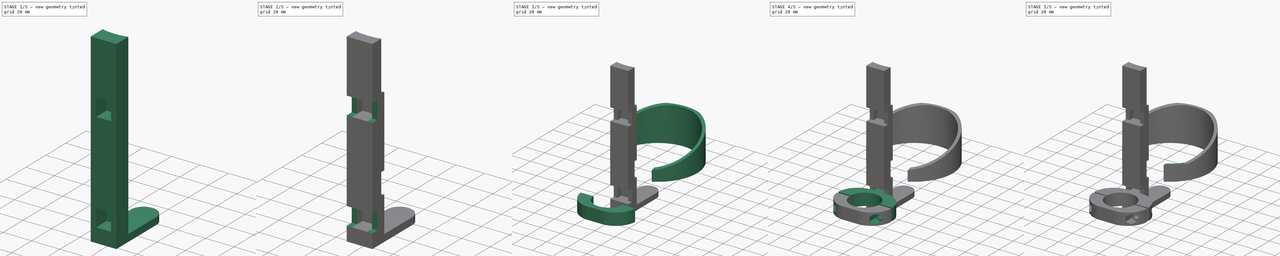
[diagram: build sequence overview — one tinted view per stage of 5, left to right]
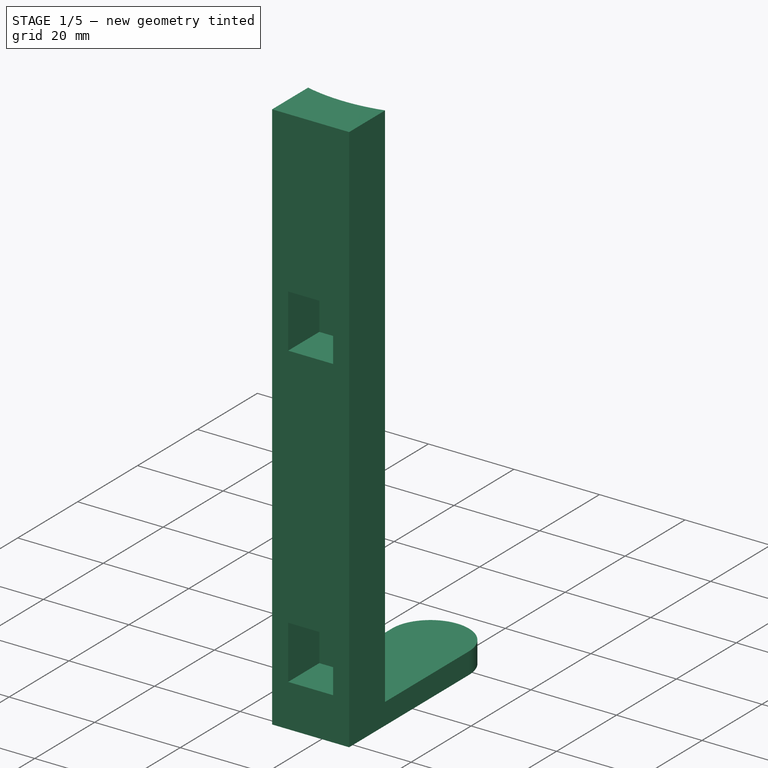
[diagram: stage 1 of 5 — iso view after this stage's code; geometry added in this stage tinted green]
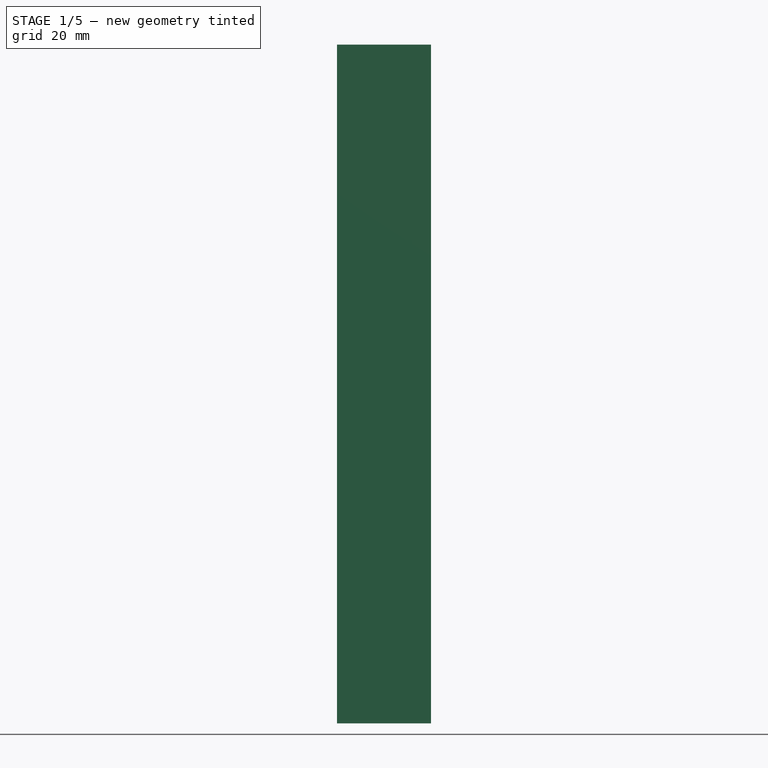
[diagram: stage 1 of 5 — front view after this stage's code; geometry added in this stage tinted green]
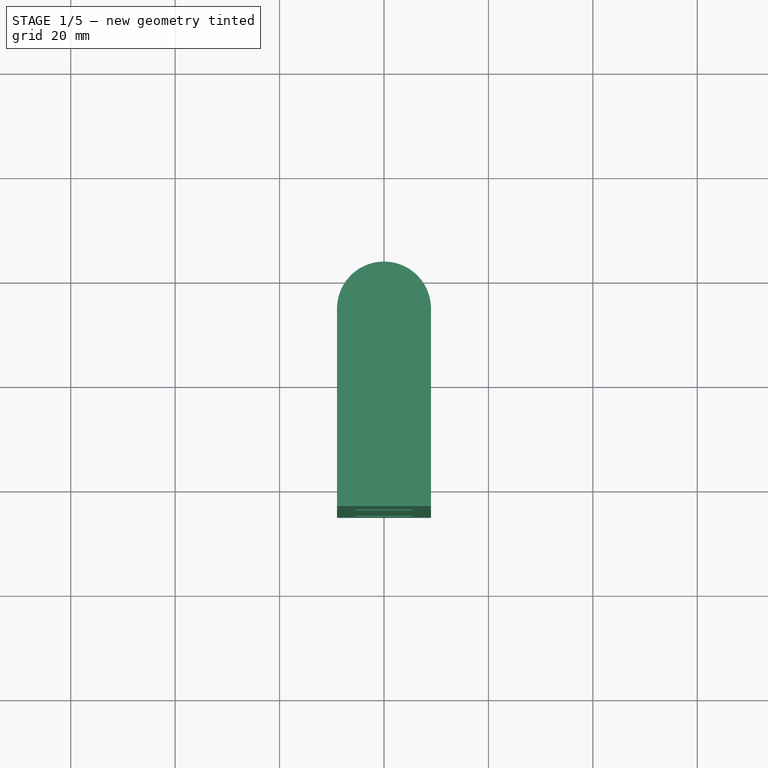
[diagram: stage 1 of 5 — top view after this stage's code; geometry added in this stage tinted green]
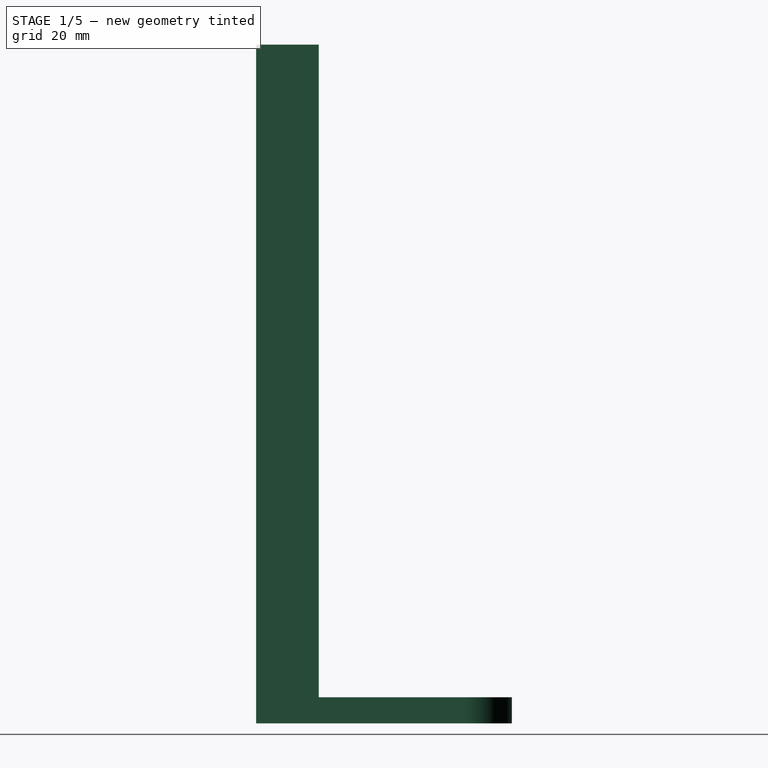
[diagram: stage 1 of 5 — right view after this stage's code; geometry added in this stage tinted green]
FCSTD DOCUMENT  (FreeCAD 0.21Rpre_29277.fc34 (Git))
Label: masodik-kulacstarto
License: All rights reserved
LicenseURL: http://en.wikipedia.org/wiki/All_rights_reserved
objects: Sketcher::SketchObject×15, PartDesign::Pocket×9, PartDesign::Pad×6, PartDesign::Body×5
note: 50 computed .brp shape members not serialized (recipe doc carries the construction recipe); baked Part::Feature solids carry a one-line shape summary decoded from their .brp

FEATURE [Sketcher::SketchObject] Sketch002
  FullyConstrained = true
  MapMode = 5
  Support = -> [XY_Plane002]
  sketch-geometry (4):
    g0: LineSegment StartX=-9 StartY=15 StartZ=0 EndX=9 EndY=15 EndZ=0
    g1: LineSegment StartX=9 StartY=15 StartZ=0 EndX=9 EndY=27 EndZ=0
    g2: LineSegment StartX=-9 StartY=27 StartZ=0 EndX=-9 EndY=15 EndZ=0
    g3: ArcOfCircle CenterX=-9.1e-15 CenterY=61.8569 CenterZ=0 NormalX=0 NormalY=0 NormalZ=1 AngleXU=0 Radius=36 StartAngle=4.45971 EndAngle=4.96507
  constraints (13):
    c: Coincident(g0,g1)
    c: Coincident(g2,g0)
    c: Horizontal(g0)
    c: Vertical(g1)
    c: Vertical(g2)
    c: DistanceX(g0,g0) = 18
    c: DistanceX(g0) = 9
    c: DistanceY(g0) = 15
    c: DistanceY(g1,g1) = 12
    c: Coincident(g3,g1)
    c: Radius(g3) = 36
    c: DistanceY(g2,g2) = 12
    c: Coincident(g2,g3)
FEATURE [PartDesign::Pad] Pad002  label="gerinc"
  Direction = (0,0,1)
  Length = 125
  Length2 = 10
  Profile = -> Sketch002
  ReferenceAxis = -> Sketch002 [N_Axis]
  Type = 0
FEATURE [Sketcher::SketchObject] Sketch003
  FullyConstrained = true
  MapMode = 5
  Support = -> [XY_Plane002]
  sketch-geometry (4):
    g0: LineSegment StartX=-9 StartY=15 StartZ=0 EndX=9 EndY=15 EndZ=0
    g1: LineSegment StartX=9 StartY=15 StartZ=0 EndX=9 EndY=55 EndZ=0
    g2: LineSegment StartX=-9 StartY=55 StartZ=0 EndX=-9 EndY=15 EndZ=0
    g3: ArcOfCircle CenterX=0 CenterY=55 CenterZ=0 NormalX=0 NormalY=0 NormalZ=1 AngleXU=0 Radius=9 StartAngle=0 EndAngle=3.14159
  constraints (13):
    c: Coincident(g0,g1)
    c: Coincident(g2,g0)
    c: Horizontal(g0)
    c: Vertical(g1)
    c: Vertical(g2)
    c: DistanceX(g0,g0) = 18
    c: DistanceX(g0) = 9
    c: DistanceY(g0) = 15
    c: DistanceY(g1,g1) = 40
    c: DistanceY(g2,g2) = 40
    c: DistanceY(g3) = 55
    c: Coincident(g3,g2)
    c: Coincident(g3,g1)
FEATURE [PartDesign::Pad] Pad003  label="also-tarto"
  BaseFeature = -> Pad002
  Direction = (0,0,1)
  Length = 5
  Length2 = 10
  Profile = -> Sketch003
  ReferenceAxis = -> Sketch003 [N_Axis]
  Reversed = true
  Type = 0
FEATURE [Sketcher::SketchObject] Sketch004
  AttachmentOffset = pos=(0,0,-15) rot=(0,0,1;0rad)
  FullyConstrained = true
  MapMode = 5
  Placement = pos=(0,15,3.3e-15) rot=(1,0,0;1.5708rad)
  Support = -> [XZ_Plane002]
  sketch-geometry (8):
    g0: LineSegment StartX=-5.25 StartY=5 StartZ=0 EndX=5.25 EndY=5 EndZ=0
    g1: LineSegment StartX=5.25 StartY=5 StartZ=0 EndX=5.25 EndY=17.5 EndZ=0
    g2: LineSegment StartX=5.25 StartY=17.5 StartZ=0 EndX=-5.25 EndY=17.5 EndZ=0
    g3: LineSegment StartX=-5.25 StartY=17.5 StartZ=0 EndX=-5.25 EndY=5 EndZ=0
    g4: LineSegment StartX=-5.25 StartY=75 StartZ=0 EndX=5.25 EndY=75 EndZ=0
    g5: LineSegment StartX=5.25 StartY=75 StartZ=0 EndX=5.25 EndY=87.5 EndZ=0
    g6: LineSegment StartX=5.25 StartY=87.5 StartZ=0 EndX=-5.25 EndY=87.5 EndZ=0
    g7: LineSegment StartX=-5.25 StartY=87.5 StartZ=0 EndX=-5.25 EndY=75 EndZ=0
  constraints (24):
    c: Coincident(g0,g1)
    c: Coincident(g1,g2)
    c: Coincident(g2,g3)
    c: Coincident(g3,g0)
    c: Horizontal(g0)
    c: Horizontal(g2)
    c: Vertical(g1)
    c: Vertical(g3)
    c: Coincident(g4,g5)
    c: Coincident(g5,g6)
    c: Coincident(g6,g7)
    c: Coincident(g7,g4)
    c: Horizontal(g4)
    c: Horizontal(g6)
    c: Vertical(g5)
    c: Vertical(g7)
    c: DistanceX(g6,g6) = 10.5
    c: DistanceX(g0,g0) = 10.5
    c: DistanceY(g1,g1) = 12.5
    c: DistanceY(g5,g5) = 12.5
    c: DistanceX(g0) = 5.25
    c: DistanceY(g0) = 5
    c: DistanceX(g4) = 5.25
    c: DistanceY(g4) = 75
FEATURE [PartDesign::Pocket] Pocket  label="rogz-csapok-helye"
  BaseFeature = -> Pad003
  Direction = (0,1,2e-16)
  Length = 10.4
  Length2 = 5
  Profile = -> Sketch004
  ReferenceAxis = -> Sketch004 [N_Axis]
  Type = 0
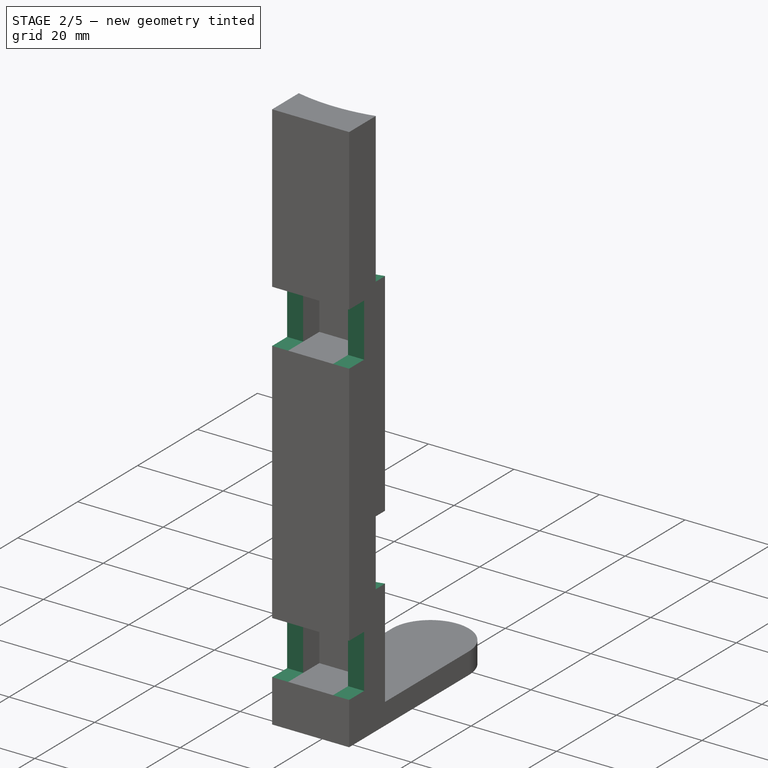
[diagram: stage 2 of 5 — iso view after this stage's code; geometry added in this stage tinted green]
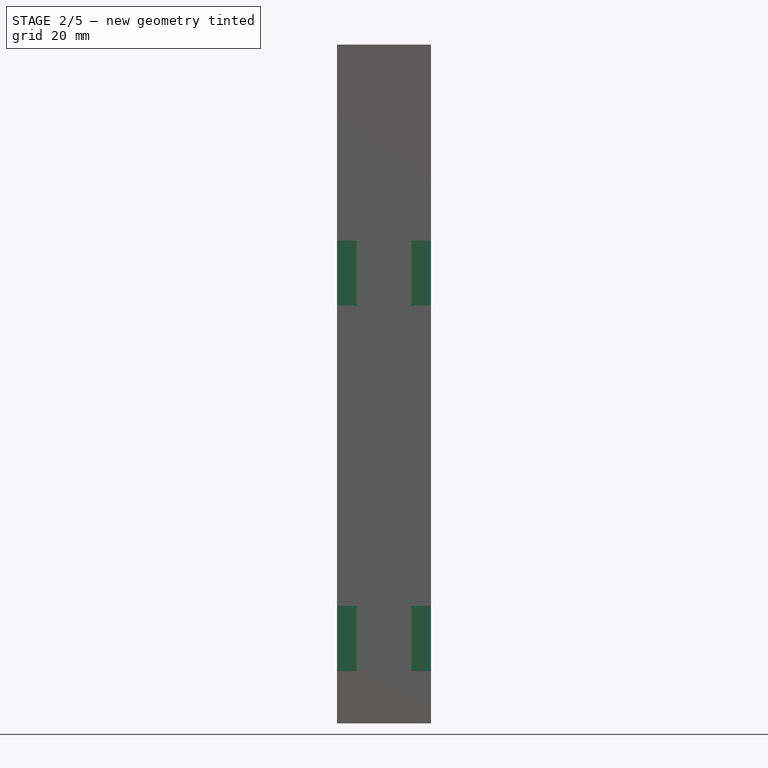
[diagram: stage 2 of 5 — front view after this stage's code; geometry added in this stage tinted green]
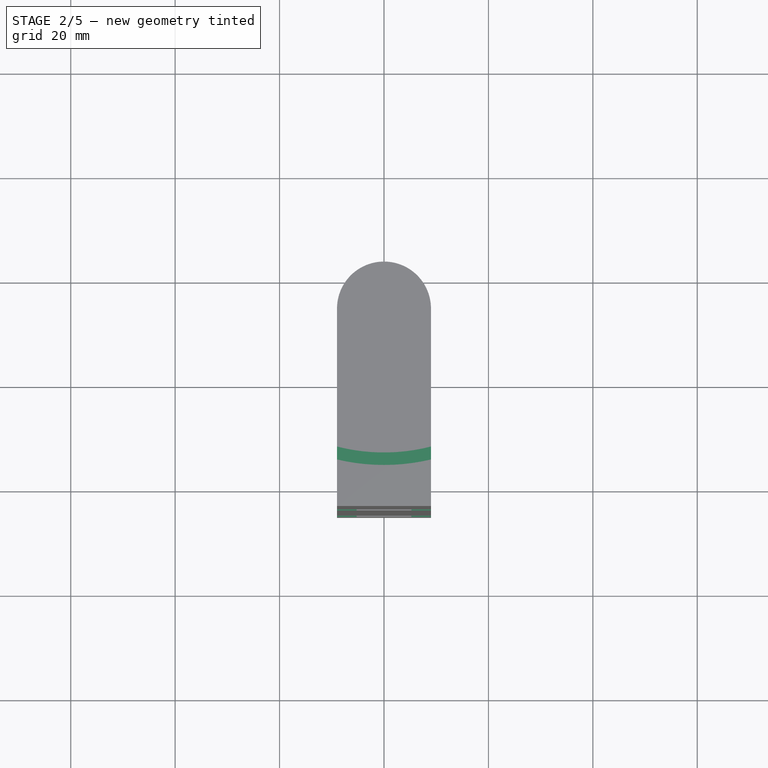
[diagram: stage 2 of 5 — top view after this stage's code; geometry added in this stage tinted green]
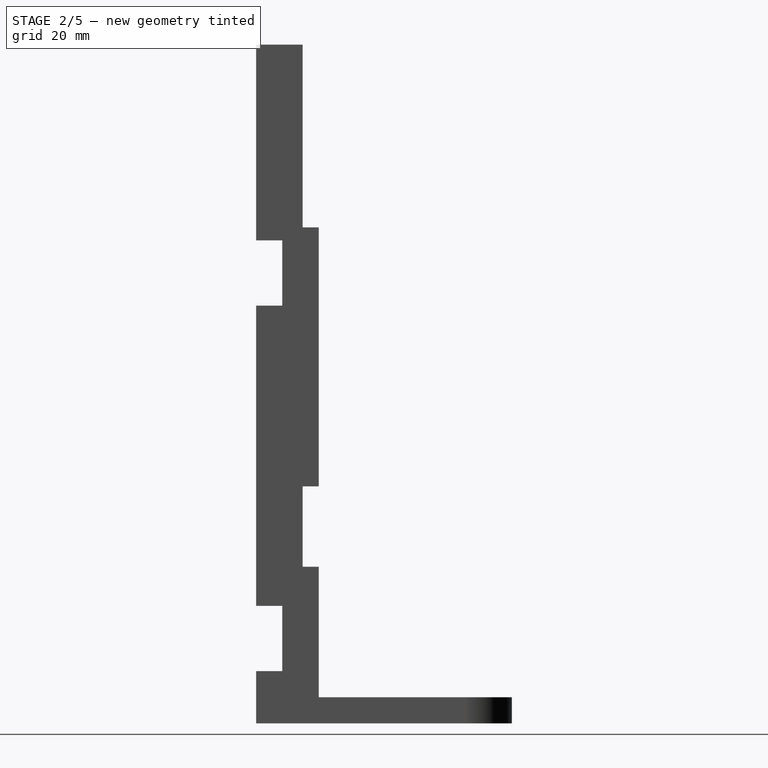
[diagram: stage 2 of 5 — right view after this stage's code; geometry added in this stage tinted green]
FEATURE [PartDesign::Body] Body003  label="also-tarto-kar"
  Group = -> [Sketch007,Pad004]
  Origin = -> Origin003
  Tip = -> Pad004
FEATURE [Sketcher::SketchObject] Sketch008
  AttachmentOffset = pos=(0,0,25) rot=(0,0,1;0rad)
  FullyConstrained = true
  MapMode = 5
  Placement = pos=(0,0,25) rot=(0,0,1;0rad)
  Support = -> [XY_Plane002]
  sketch-geometry (4):
    g0: ArcOfCircle CenterX=0 CenterY=61.8569 CenterZ=0 NormalX=0 NormalY=0 NormalZ=1 AngleXU=0 Radius=36 StartAngle=4.45971 EndAngle=4.96507
    g1: ArcOfCircle CenterX=0 CenterY=61.8569 CenterZ=0 NormalX=0 NormalY=0 NormalZ=1 AngleXU=0 Radius=39 StartAngle=4.47952 EndAngle=4.94526
    g2: LineSegment StartX=-9 StartY=27 StartZ=0 EndX=-9 EndY=23.9095 EndZ=0
    g3: LineSegment StartX=9 StartY=27 StartZ=0 EndX=9 EndY=23.9095 EndZ=0
  constraints (13):
    c: PointOnObject(g0,g-2)
    c: Radius(g0) = 36
    c: Coincident(g1,g0)
    c: Radius(g1) = 39
    c: Vertical(g3)
    c: DistanceX(g3) = 9
    c: DistanceY(g3) = 27
    c: Vertical(g2)
    c: DistanceX(g2) = -9
    c: Coincident(g0,g3)
    c: Coincident(g0,g2)
    c: Coincident(g1,g3)
    c: Coincident(g1,g2)
FEATURE [PartDesign::Pocket] Pocket001  label="also-kar-kivagas"
  BaseFeature = -> Pocket
  Direction = (0,0,-1)
  Length = 15.4
  Length2 = 5
  Profile = -> Sketch008
  ReferenceAxis = -> Sketch008 [N_Axis]
  Reversed = true
  Type = 0
FEATURE [Sketcher::SketchObject] Sketch009
  AttachmentOffset = pos=(0,0,90) rot=(0,0,1;0rad)
  FullyConstrained = true
  MapMode = 5
  Placement = pos=(0,0,90) rot=(0,0,1;0rad)
  Support = -> [XY_Plane002]
  sketch-geometry (4):
    g0: ArcOfCircle CenterX=0 CenterY=61.8569 CenterZ=0 NormalX=0 NormalY=0 NormalZ=1 AngleXU=0 Radius=36 StartAngle=4.45971 EndAngle=4.96507
    g1: ArcOfCircle CenterX=0 CenterY=61.8569 CenterZ=0 NormalX=0 NormalY=0 NormalZ=1 AngleXU=0 Radius=39 StartAngle=4.47952 EndAngle=4.94526
    g2: LineSegment StartX=-9 StartY=27 StartZ=0 EndX=-9 EndY=23.9095 EndZ=0
    g3: LineSegment StartX=9 StartY=27 StartZ=0 EndX=9 EndY=23.9095 EndZ=0
  constraints (13):
    c: PointOnObject(g0,g-2)
    c: Radius(g0) = 36
    c: Coincident(g1,g0)
    c: Radius(g1) = 39
    c: Vertical(g3)
    c: DistanceX(g3) = 9
    c: DistanceY(g3) = 27
    c: Vertical(g2)
    c: DistanceX(g2) = -9
    c: Coincident(g0,g3)
    c: Coincident(g0,g2)
    c: Coincident(g1,g3)
    c: Coincident(g1,g2)
FEATURE [PartDesign::Pocket] Pocket002  label="felso-kar-kivagas"
  BaseFeature = -> Pocket001
  Direction = (0,0,-1)
  Length = 35
  Length2 = 5
  Profile = -> Sketch009
  ReferenceAxis = -> Sketch009 [N_Axis]
  Reversed = true
  Type = 0
FEATURE [PartDesign::Body] Body004  label="felso-tarto-kar"
  Group = -> [Sketch014,Pad005,Sketch015,Pocket007]
  Origin = -> Origin004
  Placement = pos=(0,0,50) rot=(0,0,1;0rad)
  Tip = -> Pocket007
FEATURE [Sketcher::SketchObject] Sketch016
  AttachmentOffset = pos=(0,0,-15) rot=(0,0,1;0rad)
  FullyConstrained = true
  MapMode = 5
  Placement = pos=(0,15,3.3e-15) rot=(1,0,0;1.5708rad)
  Support = -> [XZ_Plane002]
  sketch-geometry (8):
    g0: LineSegment StartX=-9 StartY=17.5 StartZ=0 EndX=9 EndY=17.5 EndZ=0
    g1: LineSegment StartX=9 StartY=17.5 StartZ=0 EndX=9 EndY=5 EndZ=0
    g2: LineSegment StartX=9 StartY=5 StartZ=0 EndX=-9 EndY=5 EndZ=0
    g3: LineSegment StartX=-9 StartY=5 StartZ=0 EndX=-9 EndY=17.5 EndZ=0
    g4: LineSegment StartX=-9 StartY=87.5 StartZ=0 EndX=9 EndY=87.5 EndZ=0
    g5: LineSegment StartX=9 StartY=87.5 StartZ=0 EndX=9 EndY=75 EndZ=0
    g6: LineSegment StartX=9 StartY=75 StartZ=0 EndX=-9 EndY=75 EndZ=0
    g7: LineSegment StartX=-9 StartY=75 StartZ=0 EndX=-9 EndY=87.5 EndZ=0
  constraints (24):
    c: Coincident(g0,g1)
    c: Coincident(g1,g2)
    c: Coincident(g2,g3)
    c: Coincident(g3,g0)
    c: Horizontal(g0)
    c: Horizontal(g2)
    c: Vertical(g1)
    c: Vertical(g3)
    c: Coincident(g4,g5)
    c: Coincident(g5,g6)
    c: Coincident(g6,g7)
    c: Coincident(g7,g4)
    c: Horizontal(g4)
    c: Horizontal(g6)
    c: Vertical(g5)
    c: Vertical(g7)
    c: DistanceX(g1) = 9
    c: DistanceY(g1) = 5
    c: DistanceX(g5) = 9
    c: DistanceY(g5) = 75
    c: DistanceX(g4,g4) = 18
    c: DistanceX(g0,g0) = 18
    c: DistanceY(g5,g5) = 12.5
    c: DistanceY(g1,g1) = 12.5
FEATURE [PartDesign::Pocket] Pocket008  label="bilincs-kivagas"
  BaseFeature = -> Pocket002
  Direction = (0,1,2e-16)
  Length = 5
  Length2 = 5
  Profile = -> Sketch016
  ReferenceAxis = -> Sketch016 [N_Axis]
  Type = 0
FEATURE [PartDesign::Body] Body002  label="tarto-gerinc"
  Group = -> [Sketch002,Pad002,Sketch003,Pad003,Sketch004,Pocket,Sketch008,Pocket001,Sketch009,Pocket002,Sketch016,Pocket008]
  Origin = -> Origin002
  Tip = -> Pocket008
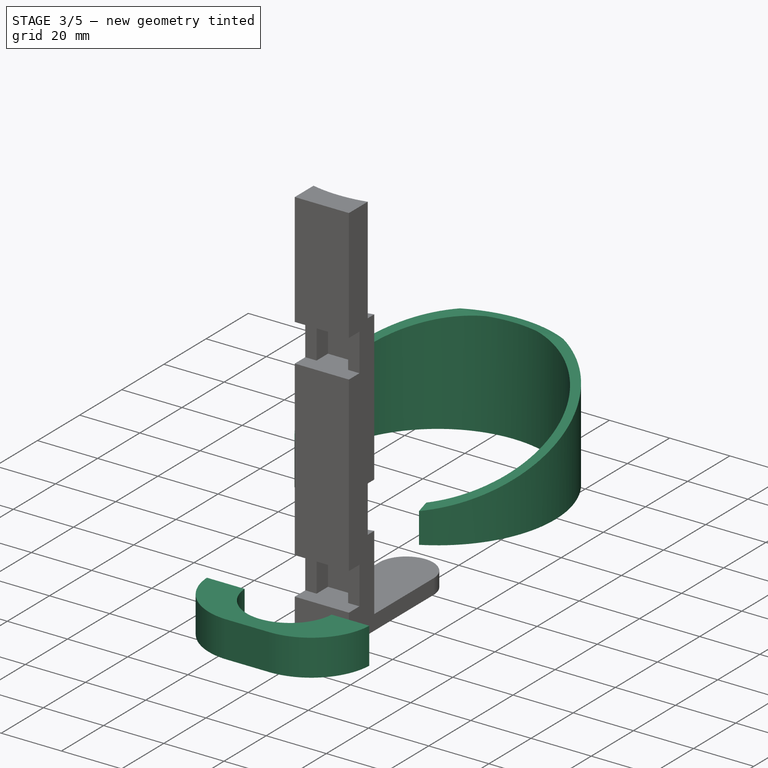
[diagram: stage 3 of 5 — iso view after this stage's code; geometry added in this stage tinted green]
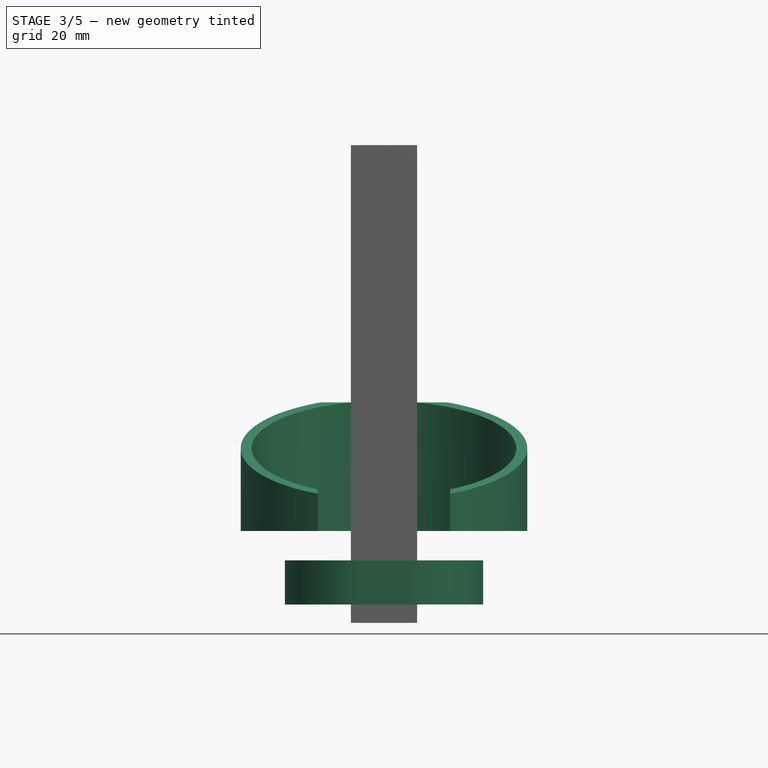
[diagram: stage 3 of 5 — front view after this stage's code; geometry added in this stage tinted green]
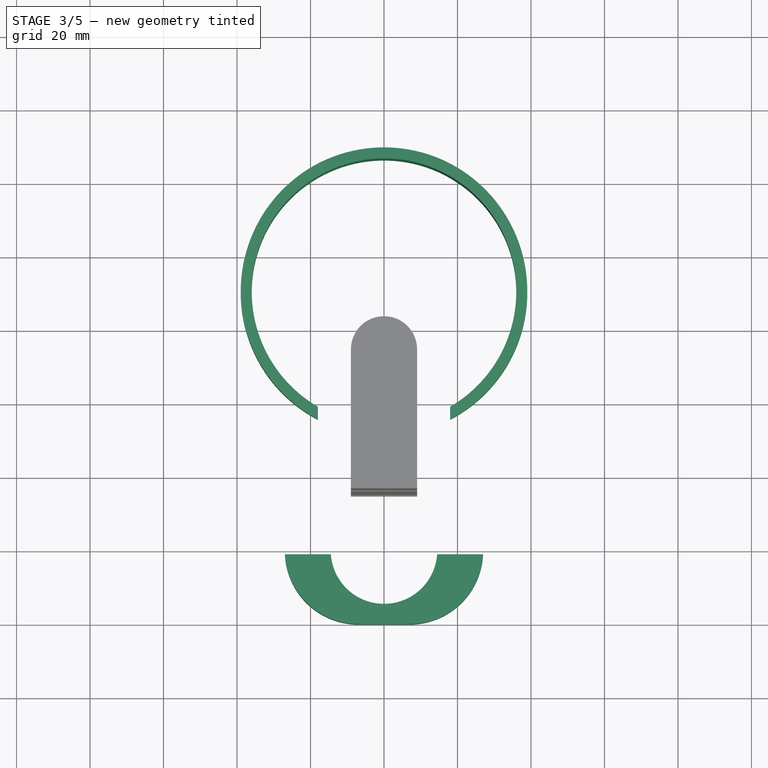
[diagram: stage 3 of 5 — top view after this stage's code; geometry added in this stage tinted green]
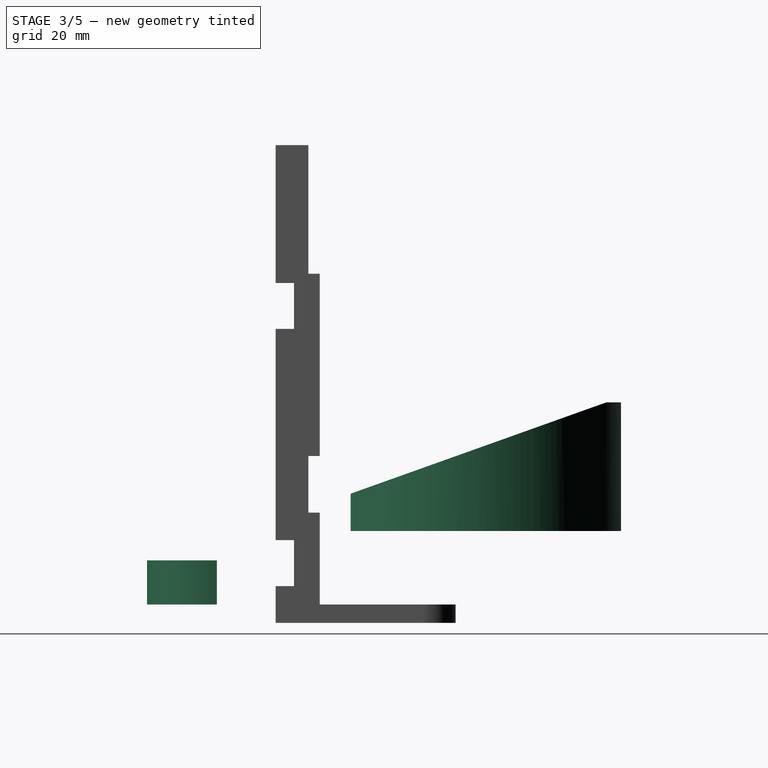
[diagram: stage 3 of 5 — right view after this stage's code; geometry added in this stage tinted green]
FEATURE [PartDesign::Pad] Pad001  label="bilincs-also"
  Direction = (0,0,1)
  Length = 12
  Length2 = 10
  Profile = -> Sketch001
  ReferenceAxis = -> Sketch001 [N_Axis]
  Type = 0
FEATURE [PartDesign::Body] Body001  label="bilincs-2"
  Group = -> [Sketch001,Pad001,Sketch011,Pocket005,Sketch013,Pocket006]
  Origin = -> Origin001
  Placement = pos=(0,-20,0) rot=(0,0,1;0rad)
  Tip = -> Pocket006
FEATURE [Sketcher::SketchObject] Sketch014
  AttachmentOffset = pos=(0,70,20) rot=(0,0,1;0rad)
  FullyConstrained = true
  MapMode = 5
  Placement = pos=(0,70,20) rot=(0,0,1;0rad)
  Support = -> [XY_Plane004]
  sketch-geometry (4):
    g0: ArcOfCircle CenterX=0 CenterY=0 CenterZ=0 NormalX=0 NormalY=0 NormalZ=1 AngleXU=0 Radius=36 StartAngle=5.23599 EndAngle=10.472
    g1: LineSegment StartX=-18 StartY=-31.1769 StartZ=0 EndX=-18 EndY=-34.5977 EndZ=0
    g2: LineSegment StartX=18 StartY=-31.1769 StartZ=0 EndX=18 EndY=-34.5977 EndZ=0
    g3: ArcOfCircle CenterX=0 CenterY=0 CenterZ=0 NormalX=0 NormalY=0 NormalZ=1 AngleXU=0 Radius=39 StartAngle=5.19212 EndAngle=10.5158
  constraints (12):
    c: Coincident(g0,g-1)
    c: Radius(g0) = 36
    c: Vertical(g1)
    c: Vertical(g2)
    c: DistanceX(g1) = -18
    c: DistanceX(g2) = 18
    c: Coincident(g0,g1)
    c: Coincident(g0,g2)
    c: Coincident(g3,g0)
    c: Radius(g3) = 39
    c: Coincident(g3,g1)
    c: Coincident(g3,g2)
FEATURE [PartDesign::Pad] Pad005  label="felso-kar"
  Direction = (0,0,1)
  Length = 35
  Length2 = 10
  Profile = -> Sketch014
  ReferenceAxis = -> Sketch014 [N_Axis]
  Type = 0
FEATURE [Sketcher::SketchObject] Sketch015
  FullyConstrained = true
  MapMode = 5
  Placement = pos=(0,0,0) rot=(0.57735,0.57735,0.57735;2.0944rad)
  Support = -> [YZ_Plane004]
  sketch-geometry (3):
    g0: LineSegment StartX=105 StartY=55 StartZ=0 EndX=35 EndY=30 EndZ=0
    g1: LineSegment StartX=35 StartY=30 StartZ=0 EndX=35 EndY=55 EndZ=0
    g2: LineSegment StartX=35 StartY=55 StartZ=0 EndX=105 EndY=55 EndZ=0
  constraints (9):
    c: Coincident(g0,g1)
    c: Coincident(g1,g2)
    c: Horizontal(g2)
    c: Coincident(g0,g2)
    c: Vertical(g1)
    c: DistanceX(g0) = 35
    c: DistanceY(g0) = 30
    c: DistanceX(g0) = 105
    c: DistanceY(g0) = 55
FEATURE [PartDesign::Pocket] Pocket007  label="kivagas"
  BaseFeature = -> Pad005
  Direction = (-1,2e-16,-3e-16)
  Length = 80
  Length2 = 5
  Midplane = true
  Profile = -> Sketch015
  ReferenceAxis = -> Sketch015 [N_Axis]
  Type = 0
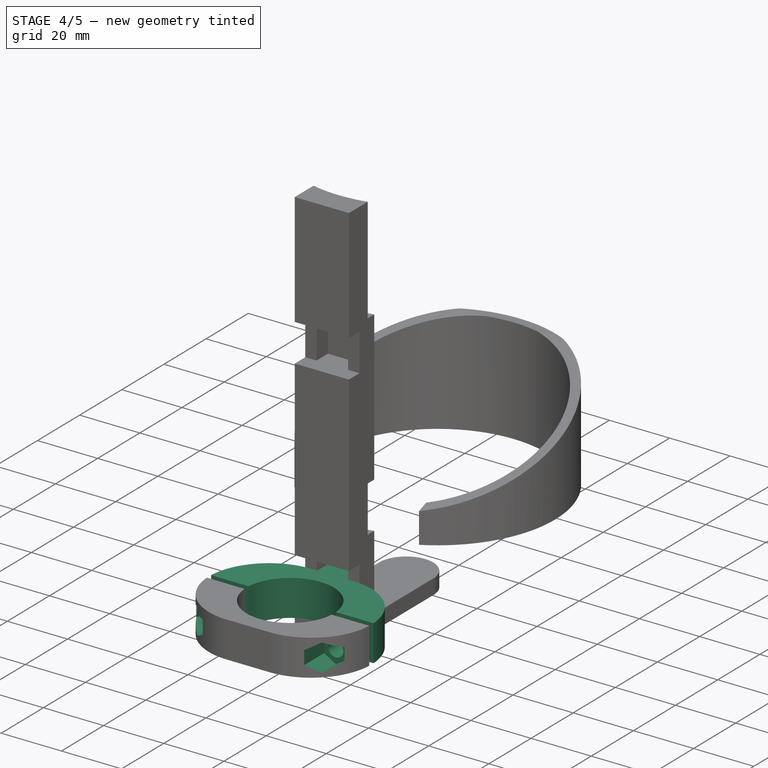
[diagram: stage 4 of 5 — iso view after this stage's code; geometry added in this stage tinted green]
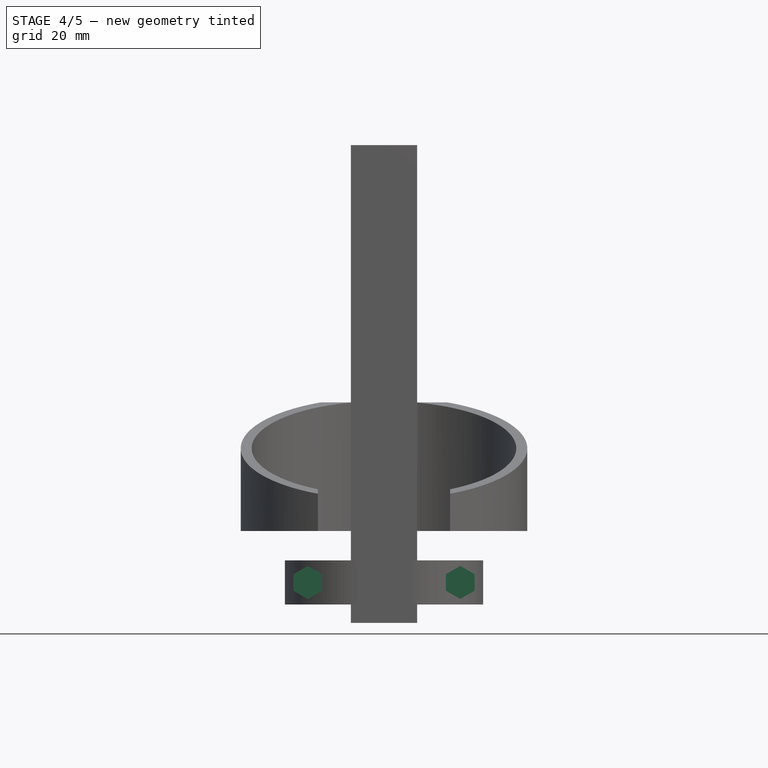
[diagram: stage 4 of 5 — front view after this stage's code; geometry added in this stage tinted green]
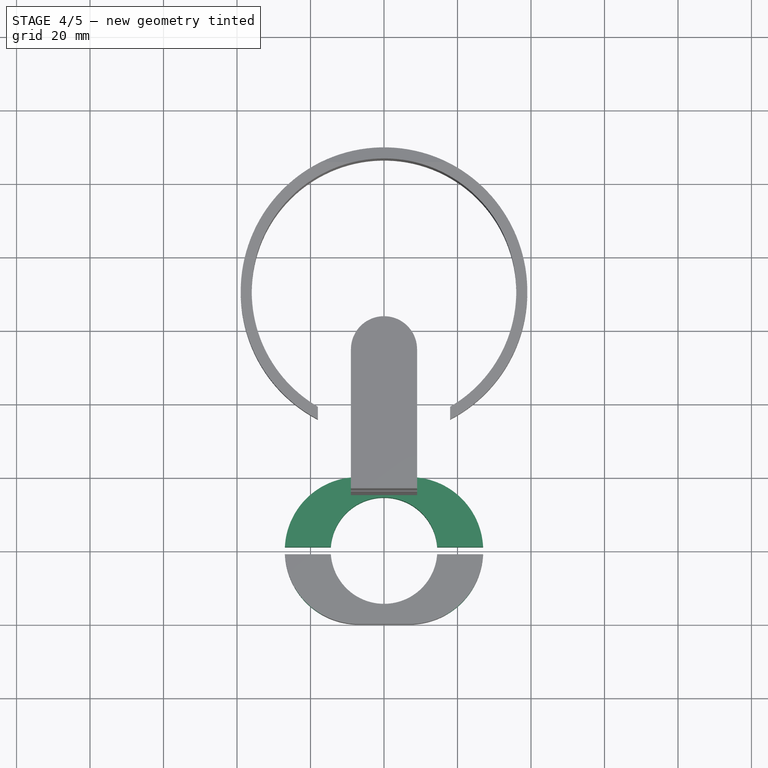
[diagram: stage 4 of 5 — top view after this stage's code; geometry added in this stage tinted green]
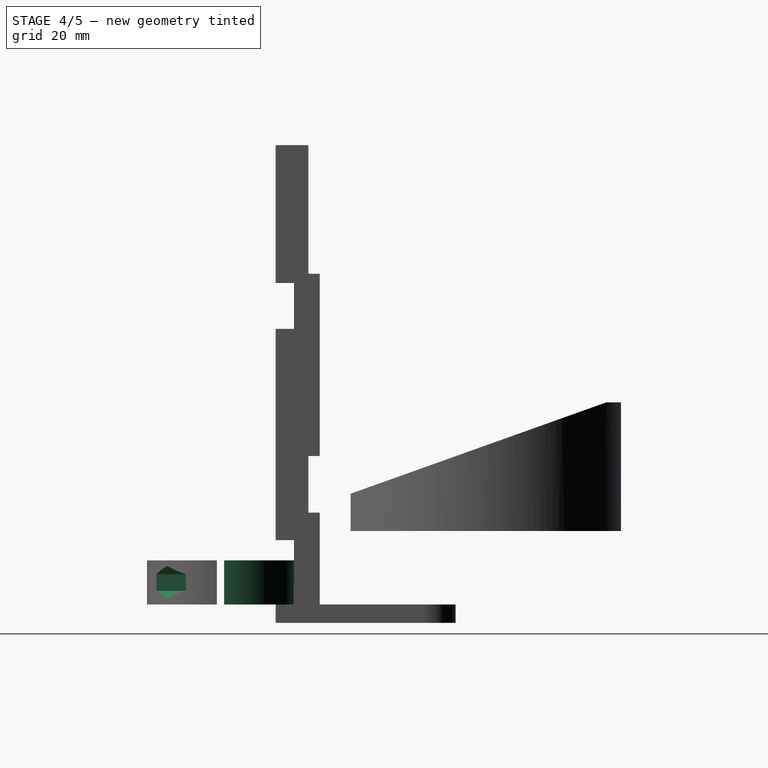
[diagram: stage 4 of 5 — right view after this stage's code; geometry added in this stage tinted green]
FEATURE [Sketcher::SketchObject] Sketch
  FullyConstrained = true
  MapMode = 5
  Support = -> [XY_Plane]
  sketch-geometry (10):
    g0: ArcOfCircle CenterX=-7 CenterY=0 CenterZ=0 NormalX=0 NormalY=0 NormalZ=1 AngleXU=0 Radius=20 StartAngle=1.5708 EndAngle=3.09157
    g1: LineSegment StartX=7 StartY=20 StartZ=0 EndX=5 EndY=20 EndZ=0
    g2: LineSegment StartX=-26.975 StartY=1 StartZ=0 EndX=-14.4655 EndY=1 EndZ=0
    g3: ArcOfCircle CenterX=6.91303e-08 CenterY=-1.04671e-06 CenterZ=0 NormalX=0 NormalY=0 NormalZ=1 AngleXU=0 Radius=14.5 StartAngle=0.0690205 EndAngle=3.07257
    g4: ArcOfCircle CenterX=7 CenterY=0 CenterZ=0 NormalX=0 NormalY=0 NormalZ=1 AngleXU=0 Radius=20 StartAngle=0.0500212 EndAngle=1.5708
    g5: LineSegment StartX=14.4655 StartY=1 StartZ=0 EndX=26.975 EndY=1.00001 EndZ=0
    g6: LineSegment StartX=-5 StartY=20 StartZ=0 EndX=-5 EndY=25 EndZ=0
    g7: LineSegment StartX=-5 StartY=25 StartZ=0 EndX=5 EndY=25 EndZ=0
    g8: LineSegment StartX=5 StartY=25 StartZ=0 EndX=5 EndY=20 EndZ=0
    g9: LineSegment StartX=-5 StartY=20 StartZ=0 EndX=-7 EndY=20 EndZ=0
  constraints (33):
    c: Coincident(g4,g1) = -1.5708
    c: Coincident(g9,g0) = -1.5708
    c: PointOnObject(g0,g-1)
    c: DistanceX(g0) = -7
    c: Horizontal(g2)
    c: DistanceY(g2) = 1
    c: Coincident(g0,g2)
    c: Coincident(g4,g5)
    c: Coincident(g2,g3)
    c: Coincident(g5,g3)
    c: DistanceX(g4) = 26.975
    c: DistanceX(g1) = 7
    c: DistanceX(g3) = 14.4655
    c: DistanceX(g2) = -14.4655
    c: Vertical(g6)
    c: Coincident(g7,g6)
    c: Horizontal(g7)
    c: Coincident(g8,g7)
    c: Vertical(g8)
    c: Coincident(g1,g8)
    c: Coincident(g9,g6)
    c: DistanceX(g6) = -5
    c: DistanceY(g6) = 20
    c: DistanceX(g1) = 5
    c: DistanceY(g1) = 20
    c: DistanceY(g6,g6) = 5
    c: DistanceX(g0) = -26.975
    c: DistanceY(g3) = 1
    c: DistanceY(g4) = 1.00001
    c: Radius(g3) = 14.5
    c: DistanceX(g0) = -7
    c: DistanceY(g1) = 20
    c: Radius(g4) = 20
FEATURE [Sketcher::SketchObject] Sketch001
  FullyConstrained = true
  MapMode = 5
  Support = -> [XY_Plane001]
  sketch-geometry (6):
    g0: ArcOfCircle CenterX=1.76277e-07 CenterY=-2.50322e-06 CenterZ=0 NormalX=0 NormalY=0 NormalZ=1 AngleXU=0 Radius=14.5 StartAngle=3.21061 EndAngle=6.21416
    g1: ArcOfCircle CenterX=7 CenterY=0 CenterZ=0 NormalX=0 NormalY=0 NormalZ=1 AngleXU=0 Radius=20 StartAngle=4.71239 EndAngle=6.23316
    g2: LineSegment StartX=-7 StartY=-20 StartZ=0 EndX=7 EndY=-20 EndZ=0
    g3: LineSegment StartX=26.975 StartY=-1.00001 StartZ=0 EndX=14.4655 EndY=-1.00001 EndZ=0
    g4: ArcOfCircle CenterX=-7 CenterY=-3.6e-15 CenterZ=0 NormalX=0 NormalY=0 NormalZ=1 AngleXU=0 Radius=20 StartAngle=3.19161 EndAngle=4.71239
    g5: LineSegment StartX=-14.4655 StartY=-1 StartZ=0 EndX=-26.975 EndY=-1 EndZ=0
  constraints (20):
    c: Radius(g0) = 14.5
    c: Coincident(g4,g2) = -1.5708
    c: Tangent(g2,g1) = -1.5708
    c: PointOnObject(g1,g-1)
    c: Radius(g1) = 20
    c: DistanceX(g1) = 7
    c: Horizontal(g3)
    c: DistanceY(g5) = -1
    c: Coincident(g4,g5)
    c: Coincident(g1,g3)
    c: Coincident(g3,g0)
    c: Coincident(g5,g0)
    c: DistanceX(g0) = -14.4655
    c: DistanceX(g0) = 14.4655
    c: DistanceX(g2) = -7
    c: DistanceX(g1) = 7
    c: DistanceX(g1) = 26.975
    c: DistanceX(g4) = -26.975
    c: Radius(g4) = 20
    c: DistanceY(g0) = -1
FEATURE [PartDesign::Pad] Pad  label="bilincs-csap"
  Direction = (0,0,1)
  Length = 12
  Length2 = 10
  Profile = -> Sketch
  ReferenceAxis = -> Sketch [N_Axis]
  Type = 0
FEATURE [PartDesign::Body] Body  label="bilincs-1"
  Group = -> [Sketch,Pad,Sketch010,Pocket003,Sketch012,Pocket004]
  Origin = -> Origin
  Placement = pos=(0,-20,0) rot=(0,0,1;0rad)
  Tip = -> Pocket004
FEATURE [PartDesign::Pocket] Pocket005  label="csav-furat"
  BaseFeature = -> Pad001
  Direction = (0,1,2e-16)
  Length = 30
  Length2 = 5
  Profile = -> Sketch011
  ReferenceAxis = -> Sketch011 [N_Axis]
  Reversed = true
  Type = 0
FEATURE [Sketcher::SketchObject] Sketch013
  AttachmentOffset = pos=(0,0,8) rot=(0,0,1;0rad)
  FullyConstrained = true
  MapMode = 5
  Placement = pos=(0,-8,-1.8e-15) rot=(1,0,0;1.5708rad)
  Support = -> [XZ_Plane001]
  sketch-geometry (14):
    g0: LineSegment StartX=24.6471 StartY=8.25 StartZ=0 EndX=20.75 EndY=10.5 EndZ=0
    g1: LineSegment StartX=20.75 StartY=10.5 StartZ=0 EndX=16.8529 EndY=8.25 EndZ=0
    g2: LineSegment StartX=16.8529 StartY=8.25 StartZ=0 EndX=16.8529 EndY=3.75 EndZ=0
    g3: LineSegment StartX=16.8529 StartY=3.75 StartZ=0 EndX=20.75 EndY=1.5 EndZ=0
    g4: LineSegment StartX=20.75 StartY=1.5 StartZ=0 EndX=24.6471 EndY=3.75 EndZ=0
    g5: LineSegment StartX=24.6471 StartY=3.75 StartZ=0 EndX=24.6471 EndY=8.25 EndZ=0
    g6: Circle CenterX=20.75 CenterY=6 CenterZ=0 NormalX=0 NormalY=0 NormalZ=1 AngleXU=0 Radius=4.5
    g7: LineSegment StartX=-16.8529 StartY=8.25 StartZ=0 EndX=-20.75 EndY=10.5 EndZ=0
    g8: LineSegment StartX=-20.75 StartY=10.5 StartZ=0 EndX=-24.6471 EndY=8.25 EndZ=0
    g9: LineSegment StartX=-24.6471 StartY=8.25 StartZ=0 EndX=-24.6471 EndY=3.75 EndZ=0
    g10: LineSegment StartX=-24.6471 StartY=3.75 StartZ=0 EndX=-20.75 EndY=1.5 EndZ=0
    g11: LineSegment StartX=-20.75 StartY=1.5 StartZ=0 EndX=-16.8529 EndY=3.75 EndZ=0
    g12: LineSegment StartX=-16.8529 StartY=3.75 StartZ=0 EndX=-16.8529 EndY=8.25 EndZ=0
    g13: Circle CenterX=-20.75 CenterY=6 CenterZ=0 NormalX=0 NormalY=0 NormalZ=1 AngleXU=0 Radius=4.5
  constraints (34):
    c: Coincident(g0,g1)
    c: Coincident(g1,g2)
    c: Coincident(g2,g3)
    c: Coincident(g3,g4)
    c: Coincident(g4,g5)
    c: Coincident(g5,g0)
    c: Equal(g0, g1-g5) x5
    c: PointOnObject(g0,g6)
    c: PointOnObject(g1,g6)
    c: PointOnObject(g2,g6)
    c: PointOnObject(g3,g6)
    c: PointOnObject(g4,g6)
    c: PointOnObject(g5,g6)
    c: Coincident(g7,g8)
    c: Coincident(g8,g9)
    c: Coincident(g9,g10)
    c: Coincident(g10,g11)
    c: Coincident(g11,g12)
    c: Coincident(g12,g7)
    c: Equal(g7, g8-g12) x5
    c: PointOnObject(g7,g13)
    c: PointOnObject(g8,g13)
    c: PointOnObject(g9,g13)
    c: PointOnObject(g10,g13)
    c: PointOnObject(g11,g13)
    c: PointOnObject(g12,g13)
    c: Vertical(g2)
    c: Vertical(g12)
    c: Radius(g6) = 4.5
    c: Radius(g13) = 4.5
    c: DistanceX(g6) = 20.75
    c: DistanceY(g6) = 6
    c: DistanceX(g13) = -20.75
    c: DistanceY(g13) = 6
FEATURE [PartDesign::Pocket] Pocket006  label="anya-helye"
  BaseFeature = -> Pocket005
  Direction = (0,1,2e-16)
  Length = 20
  Length2 = 5
  Profile = -> Sketch013
  ReferenceAxis = -> Sketch013 [N_Axis]
  Reversed = true
  Type = 0
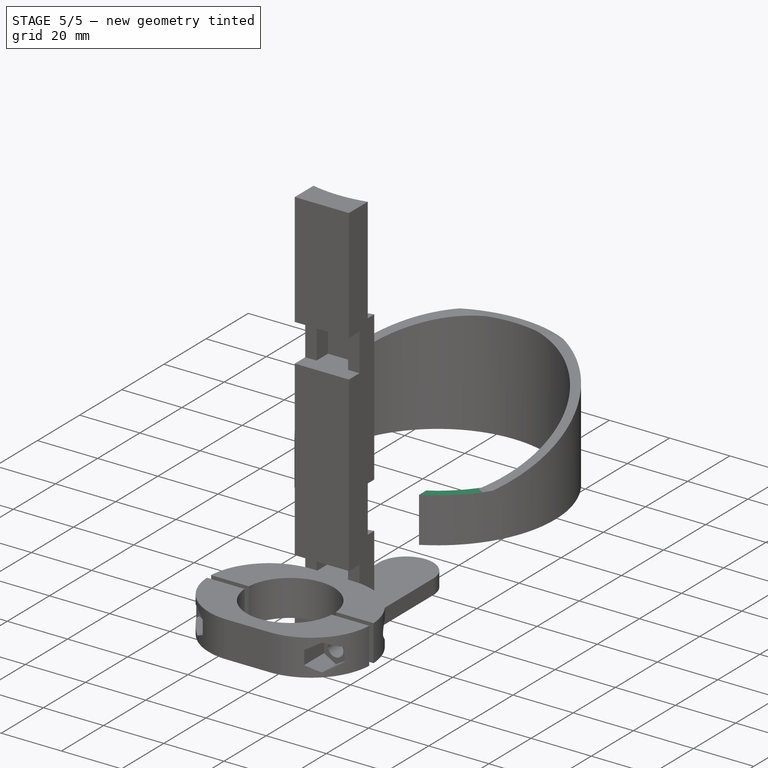
[diagram: stage 5 of 5 — iso view after this stage's code; geometry added in this stage tinted green]
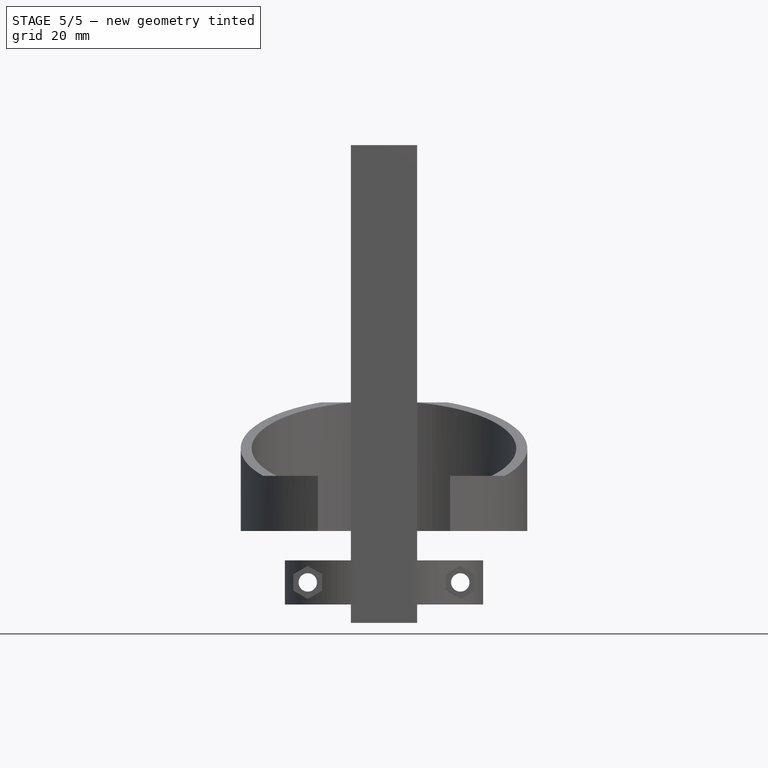
[diagram: stage 5 of 5 — front view after this stage's code; geometry added in this stage tinted green]
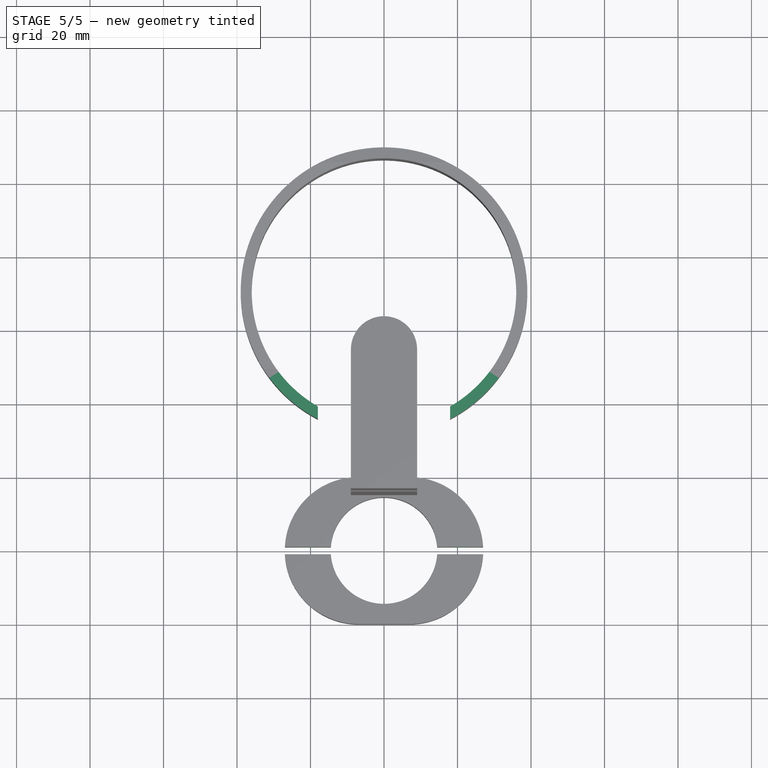
[diagram: stage 5 of 5 — top view after this stage's code; geometry added in this stage tinted green]
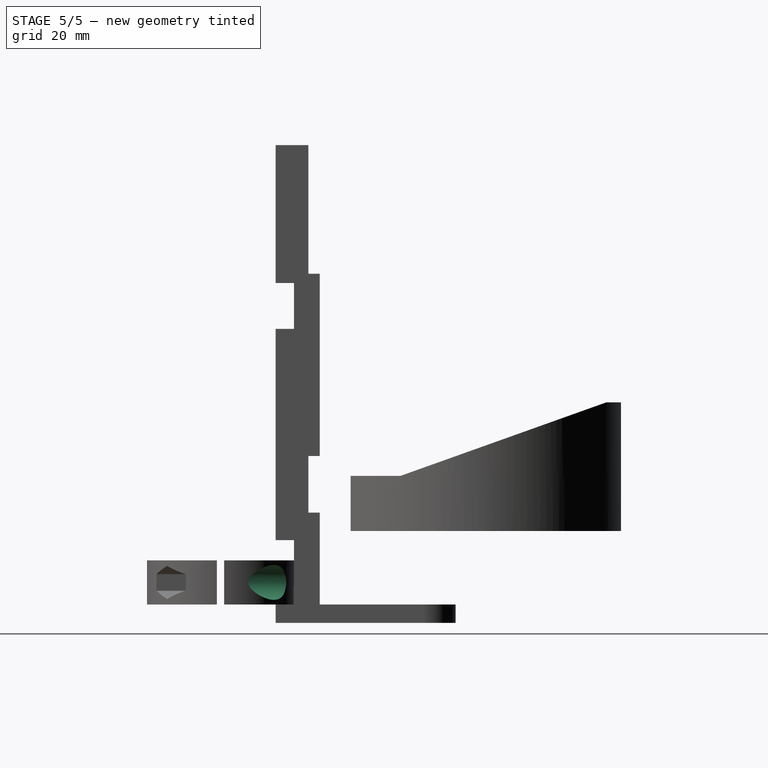
[diagram: stage 5 of 5 — right view after this stage's code; geometry added in this stage tinted green]
FEATURE [Sketcher::SketchObject] Sketch007
  AttachmentOffset = pos=(0,70,20) rot=(0,0,1;0rad)
  FullyConstrained = true
  MapMode = 5
  Placement = pos=(0,70,20) rot=(0,0,1;0rad)
  Support = -> [XY_Plane003]
  sketch-geometry (4):
    g0: ArcOfCircle CenterX=0 CenterY=0 CenterZ=0 NormalX=0 NormalY=0 NormalZ=1 AngleXU=0 Radius=36 StartAngle=5.23599 EndAngle=10.472
    g1: LineSegment StartX=-18 StartY=-31.1769 StartZ=0 EndX=-18 EndY=-34.5977 EndZ=0
    g2: LineSegment StartX=18 StartY=-31.1769 StartZ=0 EndX=18 EndY=-34.5977 EndZ=0
    g3: ArcOfCircle CenterX=0 CenterY=0 CenterZ=0 NormalX=0 NormalY=0 NormalZ=1 AngleXU=0 Radius=39 StartAngle=5.19212 EndAngle=10.5158
  constraints (12):
    c: Coincident(g0,g-1)
    c: Radius(g0) = 36
    c: Vertical(g1)
    c: Vertical(g2)
    c: DistanceX(g1) = -18
    c: DistanceX(g2) = 18
    c: Coincident(g0,g1)
    c: Coincident(g0,g2)
    c: Coincident(g3,g0)
    c: Radius(g3) = 39
    c: Coincident(g3,g1)
    c: Coincident(g3,g2)
FEATURE [PartDesign::Pad] Pad004  label="kar"
  Direction = (0,0,1)
  Length = 15
  Length2 = 10
  Profile = -> Sketch007
  ReferenceAxis = -> Sketch007 [N_Axis]
  Type = 0
FEATURE [Sketcher::SketchObject] Sketch010
  FullyConstrained = true
  MapMode = 5
  Placement = pos=(0,0,0) rot=(1,0,0;1.5708rad)
  Support = -> [XZ_Plane]
  sketch-geometry (2):
    g0: Circle CenterX=20.75 CenterY=6 CenterZ=0 NormalX=0 NormalY=0 NormalZ=1 AngleXU=0 Radius=2.5
    g1: Circle CenterX=-20.75 CenterY=6 CenterZ=0 NormalX=0 NormalY=0 NormalZ=1 AngleXU=0 Radius=2.5
  constraints (6):
    c: DistanceX(g0) = 20.75
    c: DistanceY(g0) = 6
    c: DistanceX(g1) = -20.75
    c: DistanceY(g1) = 6
    c: Radius(g0) = 2.5
    c: Radius(g1) = 2.5
FEATURE [Sketcher::SketchObject] Sketch011
  FullyConstrained = true
  MapMode = 5
  Placement = pos=(0,0,0) rot=(1,0,0;1.5708rad)
  Support = -> [XZ_Plane001]
  sketch-geometry (2):
    g0: Circle CenterX=20.75 CenterY=6 CenterZ=0 NormalX=0 NormalY=0 NormalZ=1 AngleXU=0 Radius=2.5
    g1: Circle CenterX=-20.75 CenterY=6 CenterZ=0 NormalX=0 NormalY=0 NormalZ=1 AngleXU=0 Radius=2.5
  constraints (6):
    c: DistanceX(g0) = 20.75
    c: DistanceY(g0) = 6
    c: DistanceX(g1) = -20.75
    c: DistanceY(g1) = 6
    c: Radius(g0) = 2.5
    c: Radius(g1) = 2.5
FEATURE [PartDesign::Pocket] Pocket003
  BaseFeature = -> Pad
  Direction = (0,1,2e-16)
  Length = 30
  Length2 = 5
  Profile = -> Sketch010
  ReferenceAxis = -> Sketch010 [N_Axis]
  Type = 0
FEATURE [Sketcher::SketchObject] Sketch012
  AttachmentOffset = pos=(0,0,-7) rot=(0,0,1;0rad)
  FullyConstrained = true
  MapMode = 5
  Placement = pos=(0,7,1.6e-15) rot=(1,0,0;1.5708rad)
  Support = -> [XZ_Plane]
  sketch-geometry (2):
    g0: Circle CenterX=-20.75 CenterY=6 CenterZ=0 NormalX=0 NormalY=0 NormalZ=1 AngleXU=0 Radius=4.75
    g1: Circle CenterX=20.75 CenterY=6 CenterZ=0 NormalX=0 NormalY=0 NormalZ=1 AngleXU=0 Radius=4.75
  constraints (6):
    c: DistanceX(g1) = 20.75
    c: DistanceY(g1) = 6
    c: DistanceX(g0) = -20.75
    c: DistanceY(g0) = 6
    c: Radius(g1) = 4.75
    c: Radius(g0) = 4.75
FEATURE [PartDesign::Pocket] Pocket004  label="csav-fej-helye"
  BaseFeature = -> Pocket003
  Direction = (0,1,2e-16)
  Length = 15
  Length2 = 5
  Profile = -> Sketch012
  ReferenceAxis = -> Sketch012 [N_Axis]
  Type = 0
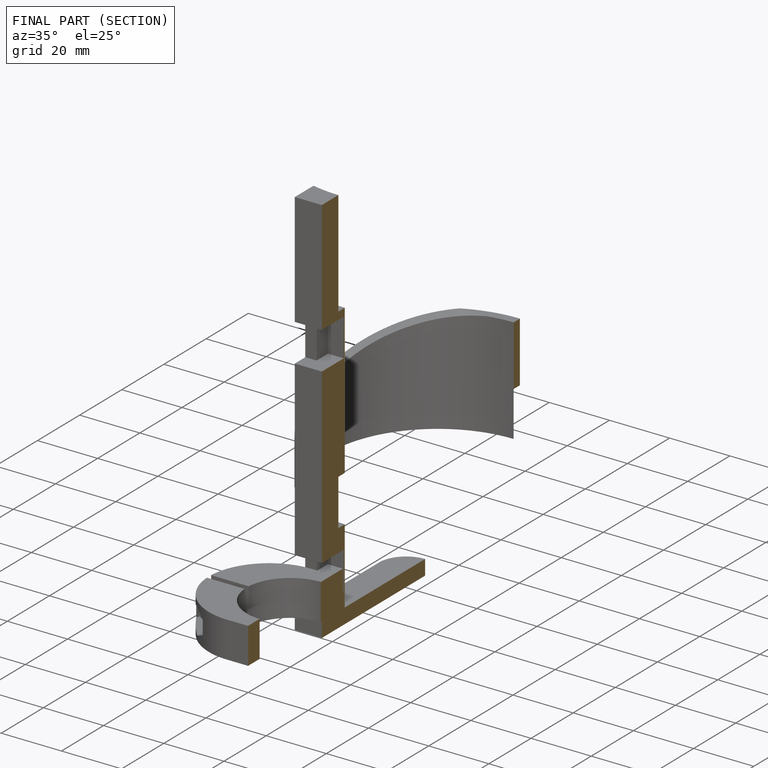
[diagram: finished part — half-section view (interior)]
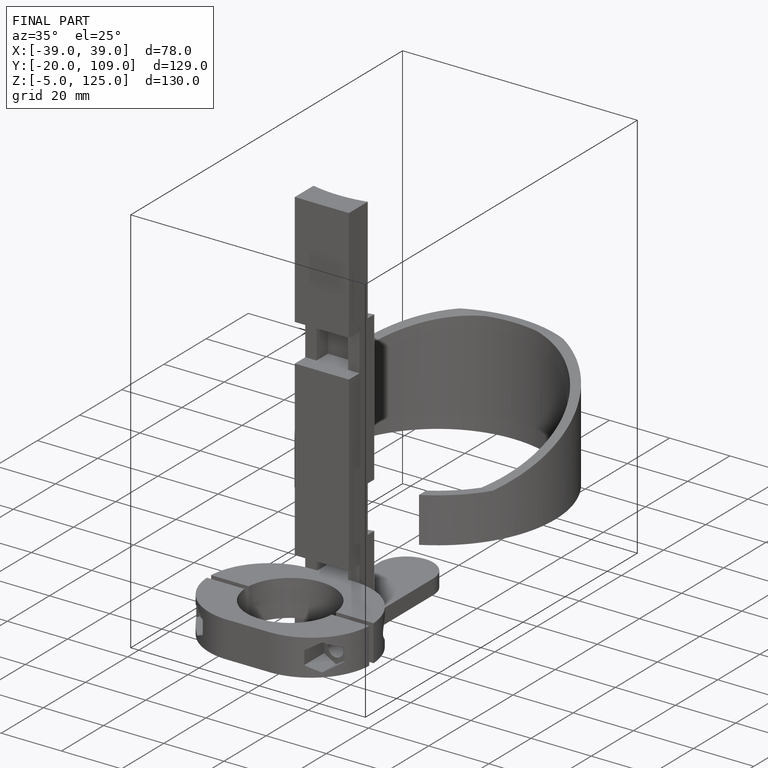
[diagram: finished part — iso view with bounding-box wireframe]
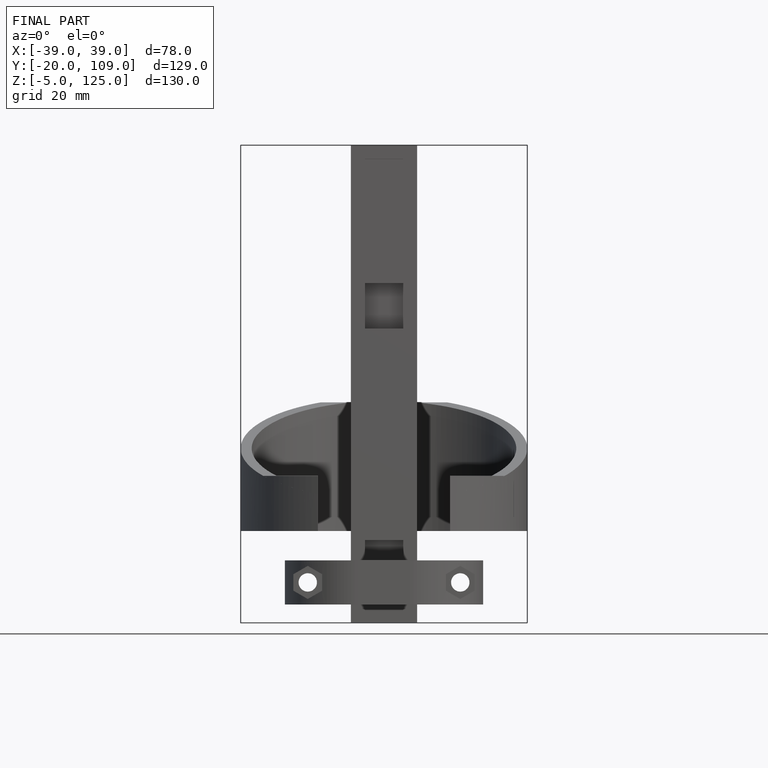
[diagram: finished part — front view with bounding-box wireframe]
